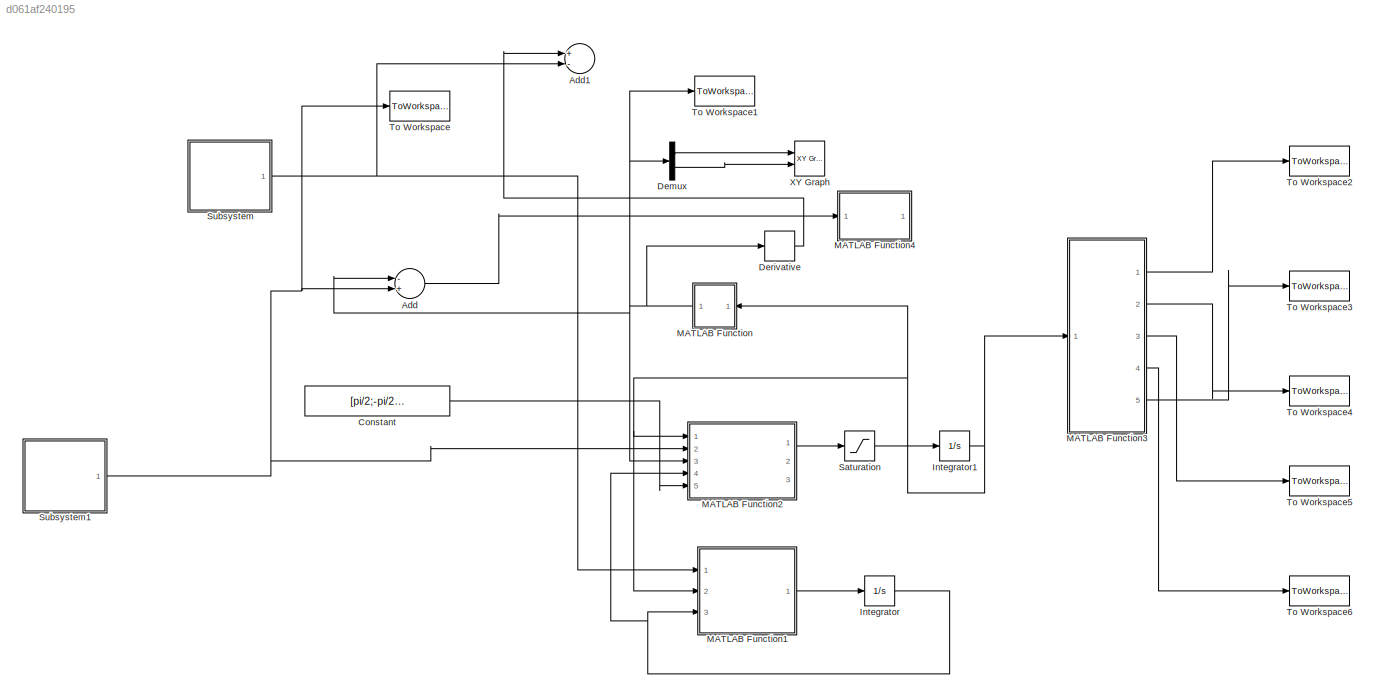
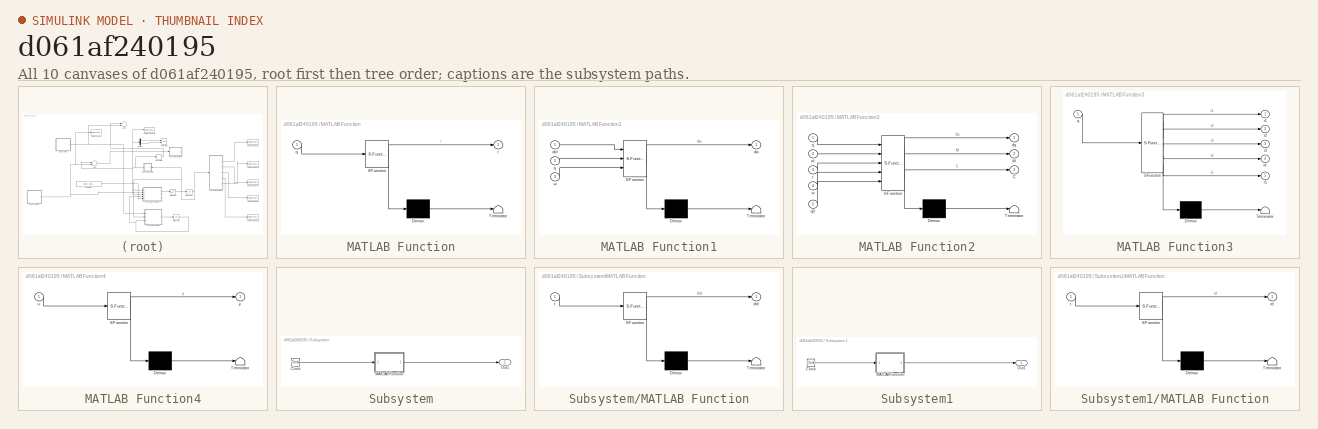
[diagram: thumbnail index - all 10 canvases of the model, root first then tree order]
MODEL slx_d061af240195
KIND model
CONFIG AbsTol = auto
CONFIG EnableMultiTasking = off
CONFIG FixedStep = 0.001
CONFIG MaxStep = auto
CONFIG MinStep = auto
CONFIG RelTol = 1e-3
CONFIG SampleTimeConstraint = Unconstrained
CONFIG Solver = ode4
CONFIG SolverName = ode4
CONFIG StartTime = 0.0
CONFIG StopTime = 12
BLOCK [Sum] Add
  InputSameDT = off
  Inputs = -+
  OutDataTypeStr = Inherit: Inherit via internal rule
  Ports = [2, 1]
  SaturateOnIntegerOverflow = off
BLOCK [Sum] Add1
  InputSameDT = off
  Inputs = +-
  OutDataTypeStr = Inherit: Inherit via internal rule
  Ports = [2, 1]
  SaturateOnIntegerOverflow = off
BLOCK [Constant] Constant
  Value = [pi/2;-pi/2;pi/2;-pi/2;-pi/4]
BLOCK [Demux] Demux
  DisplayOption = bar
  Outputs = 2
  Ports = [1, 2]
BLOCK [Derivative] Derivative
BLOCK [Integrator] Integrator
  InitialCondition = [0;0]
  Ports = [1, 1]
BLOCK [Integrator] Integrator1
  InitialCondition = [pi/2;-pi/2;pi/2;-pi/2;-pi/4]
  Ports = [1, 1]
BLOCK [SubSystem] MATLAB Function
  ErrorFcn = Stateflow.Translate.translate
  PermitHierarchicalResolution = ExplicitOnly
  Ports = [1, 1]
  RequestExecContextInheritance = off
  SFBlockType = MATLAB Function
  TreatAsAtomicUnit = on
BLOCK [Demux] MATLAB Function/ Demux 
  Outputs = 1
  Ports = [1, 1]
BLOCK [S-Function] MATLAB Function/ SFunction 
  EnableBusSupport = on
  FunctionName = sf_sfun
  PortCounts = [1 2]
  Ports = [1, 2]
  SFcnIsStateOwnerBlock = off
  SFunctionDeploymentMode = off
  Tag = Stateflow S-Function planar5link 2
BLOCK [Terminator] MATLAB Function/ Terminator 
BLOCK [Inport] MATLAB Function/q
  IconDisplay = Port number
BLOCK [Outport] MATLAB Function/r
  IconDisplay = Port number
BLOCK [SubSystem] MATLAB Function1
  ErrorFcn = Stateflow.Translate.translate
  PermitHierarchicalResolution = ExplicitOnly
  Ports = [3, 1]
  RequestExecContextInheritance = off
  SFBlockType = MATLAB Function
  TreatAsAtomicUnit = on
BLOCK [Demux] MATLAB Function1/ Demux 
  Outputs = 1
  Ports = [1, 1]
BLOCK [S-Function] MATLAB Function1/ SFunction 
  EnableBusSupport = on
  FunctionName = sf_sfun
  PortCounts = [3 2]
  Ports = [3, 2]
  SFcnIsStateOwnerBlock = off
  SFunctionDeploymentMode = off
  Tag = Stateflow S-Function planar5link 3
BLOCK [Terminator] MATLAB Function1/ Terminator 
BLOCK [Inport] MATLAB Function1/drd
  IconDisplay = Port number
BLOCK [Outport] MATLAB Function1/dw
  IconDisplay = Port number
BLOCK [Inport] MATLAB Function1/q
  IconDisplay = Port number
  Port = 2
BLOCK [Inport] MATLAB Function1/w
  IconDisplay = Port number
  Port = 3
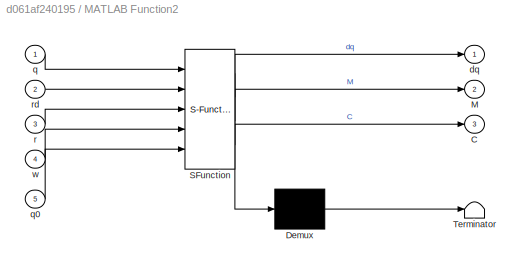
BLOCK [SubSystem] MATLAB Function2
  ErrorFcn = Stateflow.Translate.translate
  PermitHierarchicalResolution = ExplicitOnly
  Ports = [5, 3]
  RequestExecContextInheritance = off
  SFBlockType = MATLAB Function
  TreatAsAtomicUnit = on
BLOCK [Demux] MATLAB Function2/ Demux 
  Outputs = 1
  Ports = [1, 1]
BLOCK [S-Function] MATLAB Function2/ SFunction 
  EnableBusSupport = on
  FunctionName = sf_sfun
  PortCounts = [5 4]
  Ports = [5, 4]
  SFcnIsStateOwnerBlock = off
  SFunctionDeploymentMode = off
  Tag = Stateflow S-Function planar5link 4
BLOCK [Terminator] MATLAB Function2/ Terminator 
BLOCK [Outport] MATLAB Function2/C
  IconDisplay = Port number
  Port = 3
BLOCK [Outport] MATLAB Function2/M
  IconDisplay = Port number
  Port = 2
BLOCK [Outport] MATLAB Function2/dq
  IconDisplay = Port number
BLOCK [Inport] MATLAB Function2/q
  IconDisplay = Port number
BLOCK [Inport] MATLAB Function2/q0
  IconDisplay = Port number
  Port = 5
BLOCK [Inport] MATLAB Function2/r
  IconDisplay = Port number
  Port = 3
BLOCK [Inport] MATLAB Function2/rd
  IconDisplay = Port number
  Port = 2
BLOCK [Inport] MATLAB Function2/w
  IconDisplay = Port number
  Port = 4
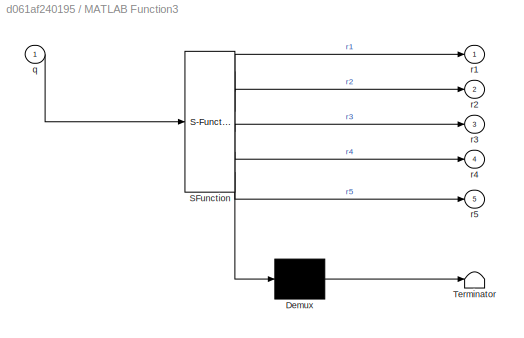
BLOCK [SubSystem] MATLAB Function3
  ErrorFcn = Stateflow.Translate.translate
  PermitHierarchicalResolution = ExplicitOnly
  Ports = [1, 5]
  RequestExecContextInheritance = off
  SFBlockType = MATLAB Function
  TreatAsAtomicUnit = on
BLOCK [Demux] MATLAB Function3/ Demux 
  Outputs = 1
  Ports = [1, 1]
BLOCK [S-Function] MATLAB Function3/ SFunction 
  EnableBusSupport = on
  FunctionName = sf_sfun
  PortCounts = [1 6]
  Ports = [1, 6]
  SFcnIsStateOwnerBlock = off
  SFunctionDeploymentMode = off
  Tag = Stateflow S-Function planar5link 6
BLOCK [Terminator] MATLAB Function3/ Terminator 
BLOCK [Inport] MATLAB Function3/q
  IconDisplay = Port number
BLOCK [Outport] MATLAB Function3/r1
  IconDisplay = Port number
BLOCK [Outport] MATLAB Function3/r2
  IconDisplay = Port number
  Port = 2
BLOCK [Outport] MATLAB Function3/r3
  IconDisplay = Port number
  Port = 3
BLOCK [Outport] MATLAB Function3/r4
  IconDisplay = Port number
  Port = 4
BLOCK [Outport] MATLAB Function3/r5
  IconDisplay = Port number
  Port = 5
BLOCK [SubSystem] MATLAB Function4
  ErrorFcn = Stateflow.Translate.translate
  PermitHierarchicalResolution = ExplicitOnly
  Ports = [1, 1]
  RequestExecContextInheritance = off
  SFBlockType = MATLAB Function
  TreatAsAtomicUnit = on
BLOCK [Demux] MATLAB Function4/ Demux 
  Outputs = 1
  Ports = [1, 1]
BLOCK [S-Function] MATLAB Function4/ SFunction 
  EnableBusSupport = on
  FunctionName = sf_sfun
  PortCounts = [1 2]
  Ports = [1, 2]
  SFcnIsStateOwnerBlock = off
  SFunctionDeploymentMode = off
  Tag = Stateflow S-Function planar5link 7
BLOCK [Terminator] MATLAB Function4/ Terminator 
BLOCK [Inport] MATLAB Function4/u
  IconDisplay = Port number
BLOCK [Outport] MATLAB Function4/y
  IconDisplay = Port number
BLOCK [Saturate] Saturation
  InputPortMap = u0
  LowerLimit = -0.21*ones(5,1)
  Ports = [1, 1]
  UpperLimit = ones(5,1)*0.21
BLOCK [SubSystem] Subsystem
  Ports = [0, 1]
  RequestExecContextInheritance = off
BLOCK [Clock] Subsystem/Clock
BLOCK [SubSystem] Subsystem/MATLAB Function
  ErrorFcn = Stateflow.Translate.translate
  PermitHierarchicalResolution = ExplicitOnly
  Ports = [1, 1]
  RequestExecContextInheritance = off
  SFBlockType = MATLAB Function
  TreatAsAtomicUnit = on
BLOCK [Demux] Subsystem/MATLAB Function/ Demux 
  Outputs = 1
  Ports = [1, 1]
BLOCK [S-Function] Subsystem/MATLAB Function/ SFunction 
  EnableBusSupport = on
  FunctionName = sf_sfun
  PortCounts = [1 2]
  Ports = [1, 2]
  SFcnIsStateOwnerBlock = off
  SFunctionDeploymentMode = off
  Tag = Stateflow S-Function planar5link 1
BLOCK [Terminator] Subsystem/MATLAB Function/ Terminator 
BLOCK [Outport] Subsystem/MATLAB Function/drd
  IconDisplay = Port number
BLOCK [Inport] Subsystem/MATLAB Function/t
  IconDisplay = Port number
BLOCK [Outport] Subsystem/Out1
  IconDisplay = Port number
BLOCK [SubSystem] Subsystem1
  Ports = [0, 1]
  RequestExecContextInheritance = off
BLOCK [Clock] Subsystem1/Clock
BLOCK [SubSystem] Subsystem1/MATLAB Function
  ErrorFcn = Stateflow.Translate.translate
  PermitHierarchicalResolution = ExplicitOnly
  Ports = [1, 1]
  RequestExecContextInheritance = off
  SFBlockType = MATLAB Function
  TreatAsAtomicUnit = on
BLOCK [Demux] Subsystem1/MATLAB Function/ Demux 
  Outputs = 1
  Ports = [1, 1]
BLOCK [S-Function] Subsystem1/MATLAB Function/ SFunction 
  EnableBusSupport = on
  FunctionName = sf_sfun
  PortCounts = [1 2]
  Ports = [1, 2]
  SFcnIsStateOwnerBlock = off
  SFunctionDeploymentMode = off
  Tag = Stateflow S-Function planar5link 5
BLOCK [Terminator] Subsystem1/MATLAB Function/ Terminator 
BLOCK [Outport] Subsystem1/MATLAB Function/rd
  IconDisplay = Port number
BLOCK [Inport] Subsystem1/MATLAB Function/t
  IconDisplay = Port number
BLOCK [Outport] Subsystem1/Out1
  IconDisplay = Port number
BLOCK [ToWorkspace] To Workspace
  FixptAsFi = on
  MaxDataPoints = inf
  Ports = [1]
  SampleTime = -1
  Save2DSignal = 3-D array (concatenate along third dimension)
  VariableName = Xdat
BLOCK [ToWorkspace] To Workspace1
  FixptAsFi = on
  MaxDataPoints = inf
  Ports = [1]
  SampleTime = -1
  Save2DSignal = 3-D array (concatenate along third dimension)
  VariableName = X
BLOCK [ToWorkspace] To Workspace2
  FixptAsFi = on
  MaxDataPoints = inf
  Ports = [1]
  SampleTime = -1
  Save2DSignal = 3-D array (concatenate along third dimension)
  VariableName = R1
BLOCK [ToWorkspace] To Workspace3
  FixptAsFi = on
  MaxDataPoints = inf
  Ports = [1]
  SampleTime = -1
  Save2DSignal = 3-D array (concatenate along third dimension)
  VariableName = R5
BLOCK [ToWorkspace] To Workspace4
  FixptAsFi = on
  MaxDataPoints = inf
  Ports = [1]
  SampleTime = -1
  Save2DSignal = 3-D array (concatenate along third dimension)
  VariableName = R2
BLOCK [ToWorkspace] To Workspace5
  FixptAsFi = on
  MaxDataPoints = inf
  Ports = [1]
  SampleTime = -1
  Save2DSignal = 3-D array (concatenate along third dimension)
  VariableName = R3
BLOCK [ToWorkspace] To Workspace6
  FixptAsFi = on
  MaxDataPoints = inf
  Ports = [1]
  SampleTime = -1
  Save2DSignal = 3-D array (concatenate along third dimension)
  VariableName = R4
BLOCK [Reference] XY Graph  REF=simulink/Sinks/XY Graph
  Ports = [2]
  SourceBlock = simulink/Sinks/XY Graph
  SourceProductBaseCode = SL
  SourceProductName = Simulink
  SourceType = XY scope.
LINE Add:1 -> MATLAB Function4:1
LINE Constant:1 -> MATLAB Function2:5
LINE Demux:1 -> XY Graph:1
LINE Demux:2 -> XY Graph:2
LINE Derivative:1 -> Add1:1
NET Integrator1:1 -> MATLAB Function1:2, MATLAB Function2:1, MATLAB Function3:1, MATLAB Function:1
NET Integrator:1 -> MATLAB Function1:3, MATLAB Function2:4
LINE MATLAB Function1:1 -> Integrator:1
LINE MATLAB Function2:1 -> Saturation:1
LINE MATLAB Function3:1 -> To Workspace2:1
LINE MATLAB Function3:2 -> To Workspace4:1
LINE MATLAB Function3:3 -> To Workspace5:1
LINE MATLAB Function3:4 -> To Workspace6:1
LINE MATLAB Function3:5 -> To Workspace3:1
NET MATLAB Function:1 -> Add:1, Demux:1, Derivative:1, MATLAB Function2:3, To Workspace1:1
LINE Saturation:1 -> Integrator1:1
LINE Subsystem/Clock:1 -> Subsystem/MATLAB Function:1
LINE Subsystem/MATLAB Function:1 -> Subsystem/Out1:1
LINE Subsystem1/Clock:1 -> Subsystem1/MATLAB Function:1
LINE Subsystem1/MATLAB Function:1 -> Subsystem1/Out1:1
NET Subsystem1:1 -> Add:2, MATLAB Function2:2, To Workspace:1
NET Subsystem:1 -> Add1:2, MATLAB Function1:1
note: NET lines group one-source signal fan-out (src -> all destinations, sorted); 1:1 wires keep LINE
CHART Subsystem/MATLAB Function states=1 transitions=1
  STATE_LABEL 'eML_blk_kernel()'
  STATE_LABEL 'SCRIPT:\nfunction drd = fcn(t)\nif (t>=0) && (t<=4)\n    drd=[-0.05991*t^2+0.2397*t;\n        -0.1038*t^2+0.4152*t];\nelseif (t<=8)\n    drd=[0.11985*(t-4)^2-0.4794*(t-4);\n        0];\nelse \n    drd=[-0.05991*(t-8)^2+0.2397*(t-8);\n        0.1038*(t-8)^2-0.4152*(t-8)];\nend\nend'
CHART MATLAB Function states=1 transitions=1
  STATE_LABEL 'eML_blk_kernel()'
  STATE_LABEL 'SCRIPT:\nfunction r = fcn(q)\nq1=q(1);\nq2=q(2);\nq3=q(3);\nq4=q(4);\nq5=q(5);\nr=[cos(q1)+cos(q1+q2)+cos(q1+q2+q3)+cos(q1+q2+q3+q4)+cos(q1+q2+q3+q4+q5);\n   sin(q1)+sin(q1+q2)+sin(q1+q2+q3)+sin(q1+q2+q3+q4)+sin(q1+q2+q3+q4+q5)];\nend'
CHART MATLAB Function1 states=1 transitions=1
  STATE_LABEL 'eML_blk_kernel()'
  STATE_LABEL 'SCRIPT:\nfunction dw = fcn(drd,q,w)\nq1=q(1);\nq2=q(2);\nq3=q(3);\nq4=q(4);\nq5=q(5);\nmuy=0.02;\nJ=[-sin(q1)-sin(q1+q2)-sin(q1+q2+q3)-sin(q1+q2+q3+q4)-sin(q1+q2+q3+q4+q5) -sin(q1+q2)-sin(q1+q2+q3)-sin(q1+q2+q3+q4)-sin(q1+q2+q3+q4+q5) -sin(q1+q2+q3)-sin(q1+q2+q3+q4)-sin(q1+q2+q3+q4+q5) -sin(q1+q2+q3+q4)-sin(q1+q2+q3+q4+q5) -sin(q1+q2+q3+q4+q5);\n    cos(q1)+cos(q1+q2)+cos(q1+q2+q3)+cos(q1+q2+q3+q4)+cos(q1+...<+209ch>'
CHART MATLAB Function2 states=1 transitions=1
  STATE_LABEL 'eML_blk_kernel()'
  STATE_LABEL 'SCRIPT:\nfunction [dq,M,C] = fcn(q,rd,r,w,q0)\nq1=q(1);\nq2=q(2);\nq3=q(3);\nq4=q(4);\nq5=q(5);\ngamma=100;\nkappa=0.42;\nJ=[-sin(q1)-sin(q1+q2)-sin(q1+q2+q3)-sin(q1+q2+q3+q4)-sin(q1+q2+q3+q4+q5) -sin(q1+q2)-sin(q1+q2+q3)-sin(q1+q2+q3+q4)-sin(q1+q2+q3+q4+q5) -sin(q1+q2+q3)-sin(q1+q2+q3+q4)-sin(q1+q2+q3+q4+q5) -sin(q1+q2+q3+q4)-sin(q1+q2+q3+q4+q5) -sin(q1+q2+q3+q4+q5);\n    cos(q1)+cos(q1+q2)+cos(q1+q2+q3)+c...<+286ch>'
CHART Subsystem1/MATLAB Function states=1 transitions=1
  STATE_LABEL 'eML_blk_kernel()'
  STATE_LABEL 'SCRIPT:\nfunction rd  = fcn(t)\nif (t>=0) && (t<=4)\n    rd=[-0.01997*t^3+0.11985*t^2+2+cosd(45);\n        -0.0346*t^3+0.2076*t^2+2-cosd(45)];\nelseif (t<=8)\n    rd=[0.03995*(t-4)^3-0.2397*(t-4)^2+2+cosd(45)+(0.4+cosd(45))/sqrt(3);\n        2.4];\nelse \n    rd=[-0.01997*(t-8)^3+0.11985*(t-8)^2+2+cosd(45)-(0.4+cosd(45))/sqrt(3);\n        0.0346*(t-8)^3-0.2076*(t-8)^2+2.4];\nend\n% q1=pi/2;\n% q2=-pi/2;\n% q3=p...<+148ch>'
CHART MATLAB Function3 states=1 transitions=1
  STATE_LABEL 'eML_blk_kernel()'
  STATE_LABEL 'SCRIPT:\nfunction [r1,r2,r3,r4,r5] = fcn(q)\nq1=q(1);\nq2=q(2);\nq3=q(3);\nq4=q(4);\nq5=q(5);\nr5=[cos(q1)+cos(q1+q2)+cos(q1+q2+q3)+cos(q1+q2+q3+q4)+cos(q1+q2+q3+q4+q5);\n   sin(q1)+sin(q1+q2)+sin(q1+q2+q3)+sin(q1+q2+q3+q4)+sin(q1+q2+q3+q4+q5)];\nr4=[cos(q1)+cos(q1+q2)+cos(q1+q2+q3)+cos(q1+q2+q3+q4);\n   sin(q1)+sin(q1+q2)+sin(q1+q2+q3)+sin(q1+q2+q3+q4)];\nr3=[cos(q1)+cos(q1+q2)+cos(q1+q2+q3);\n   sin(q1)+sin...<+101ch>'
CHART MATLAB Function4 states=1 transitions=1
  STATE_LABEL 'eML_blk_kernel()'
  STATE_LABEL 'SCRIPT:\nfunction y = fcn(u)\ny=norm(u,2);\nend'
